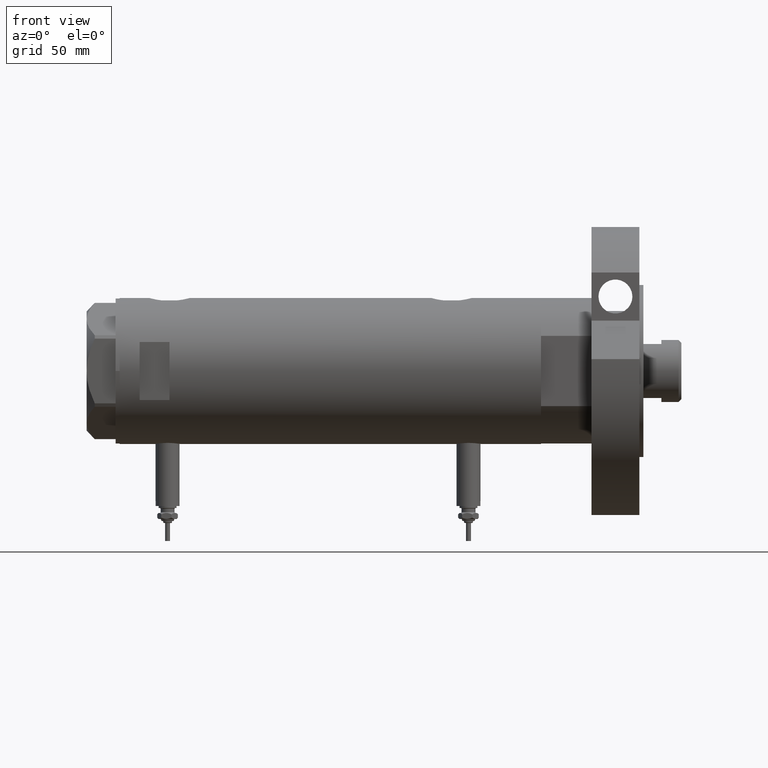
[diagram: clean part render]
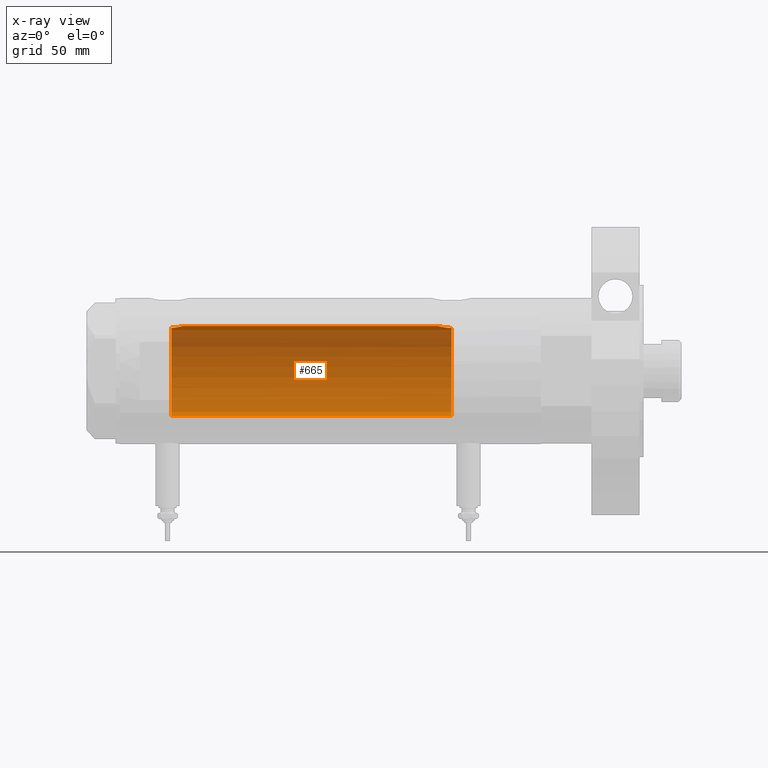
[diagram: x-ray — body ghosted, one internal face saturated and labeled with its STEP entity id]
A machine part, front view, then the same camera in x-ray: the body is ghosted and one INTERNAL B-rep face — a face not visible from any outside direction — is saturated and labeled: STEP entity #665.
In plain terms, the highlighted cylindrical surface (partial cylindrical patch) has radius 22.5 mm, axis along (1, 0, -0).
Its self-contained STEP definition (entity closure, byte-faithful):
#219 = CARTESIAN_POINT ( 'NONE',  ( 21.98170506496023791, 4.804030677015551198, -56.09847163284563010 ) ) ;
#248 = CARTESIAN_POINT ( 'NONE',  ( -22.50000000000000355, 0.000000000000000000, 105.3999999999999915 ) ) ;
#283 = CARTESIAN_POINT ( 'NONE',  ( 22.41810768969942202, 1.927264596308561284, 74.10552498238021712 ) ) ;
#319 = CARTESIAN_POINT ( 'NONE',  ( 21.58771824211646972, 6.342145538420571604, 78.63591924784432763 ) ) ;
#384 = CARTESIAN_POINT ( 'NONE',  ( 21.88602906110444124, 5.222191658358661392, -56.59110908501991588 ) ) ;
#435 = CARTESIAN_POINT ( 'NONE',  ( 22.50000000000000355, 0.000000000000000000, 73.81999999999999318 ) ) ;
#475 = DIRECTION ( 'NONE',  ( -1.000000000000000000, 0.000000000000000000, 0.000000000000000000 ) ) ;
#563 = CARTESIAN_POINT ( 'NONE',  ( 21.51969523957627928, 6.569111213712933939, -60.16380209493690501 ) ) ;
#665 = ADVANCED_FACE ( 'NONE', ( #2867 ), #4619, .F. ) ;
#822 = CARTESIAN_POINT ( 'NONE',  ( 21.85834467356397681, 5.340944334976056140, 76.53736885285051983 ) ) ;
#867 = CARTESIAN_POINT ( 'NONE',  ( 22.20005338163446851, 3.677069589895782808, 74.92964083487821370 ) ) ;
#925 = B_SPLINE_CURVE_WITH_KNOTS ( 'NONE', 3,
 ( #1390, #1546, #1465, #3791, #3228, #2651, #4974, #3262, #3863, #219, #6208, #384, #2572, #4899, #3481, #1726, #5088, #3446, #3341, #563, #5779, #6281 ),
 .UNSPECIFIED., .F., .F.,
 ( 4, 2, 2, 2, 2, 2, 2, 2, 2, 2, 4 ),
 ( 0.02068572879290662969, 0.02197833177876013649, 0.02327093476461364330, 0.02456353775046714663, 0.02585614073632065343, 0.02650244222924739990, 0.02714874372217414636, 0.02844134670802765663, 0.02973394969388116690, 0.03038025118680792031, 0.03102655267973467718 ),
 .UNSPECIFIED. ) ;
#1033 = EDGE_CURVE ( 'NONE', #4293, #7167, #5593, .T. ) ;
#1066 = DIRECTION ( 'NONE',  ( -0.000000000000000000, -0.000000000000000000, -1.000000000000000000 ) ) ;
#1327 = CARTESIAN_POINT ( 'NONE',  ( 21.70300828301578377, 5.938634204148081963, 77.54008341356919232 ) ) ;
#1390 = CARTESIAN_POINT ( 'NONE',  ( 22.50000000000000355, 8.058593785575293352E-16, -54.01999999999999602 ) ) ;
#1409 = CARTESIAN_POINT ( 'NONE',  ( 22.50000000000000355, 0.000000000000000000, 73.81999999999999318 ) ) ;
#1455 = ORIENTED_EDGE ( 'NONE', *, *, #5573, .T. ) ;
#1465 = CARTESIAN_POINT ( 'NONE',  ( 22.48752745446833146, 0.8626660575027236266, -54.06226479722904088 ) ) ;
#1546 = CARTESIAN_POINT ( 'NONE',  ( 22.50000000000000711, 0.4308769323960447983, -54.01999999999999602 ) ) ;
#1726 = CARTESIAN_POINT ( 'NONE',  ( 21.61738790272777422, 6.242481197317901298, -58.47475324290417831 ) ) ;
#1953 = CARTESIAN_POINT ( 'NONE',  ( 21.53958216864942088, 6.503568251352487728, 79.40000000000000568 ) ) ;
#1986 = CARTESIAN_POINT ( 'NONE',  ( 22.48961798642637788, 0.7839168256130882861, 73.85525408827135152 ) ) ;
#2337 = CARTESIAN_POINT ( 'NONE',  ( 0.000000000000000000, 0.000000000000000000, 105.3999999999999915 ) ) ;
#2551 = CARTESIAN_POINT ( 'NONE',  ( 21.60406082673096506, 6.286405977953739566, 78.44666670735803393 ) ) ;
#2572 = CARTESIAN_POINT ( 'NONE',  ( 21.85514244747244561, 5.349553529053611811, -56.76278474480277936 ) ) ;
#2575 = ORIENTED_EDGE ( 'NONE', *, *, #3738, .T. ) ;
#2597 = DIRECTION ( 'NONE',  ( -0.000000000000000000, -0.000000000000000000, -1.000000000000000000 ) ) ;
#2651 = CARTESIAN_POINT ( 'NONE',  ( 22.31307373663815952, 2.921646833104069696, -54.68858613169775396 ) ) ;
#2867 = FACE_OUTER_BOUND ( 'NONE', #4588, .T. ) ;
#3065 = EDGE_CURVE ( 'NONE', #4292, #4558, #7524, .T. ) ;
#3090 = CARTESIAN_POINT ( 'NONE',  ( 22.40112435233285026, 2.115025885874704414, 74.16613662186026090 ) ) ;
#3125 = CARTESIAN_POINT ( 'NONE',  ( 21.53958216864942088, 6.503568251352487728, 79.40000000000000568 ) ) ;
#3167 = CARTESIAN_POINT ( 'NONE',  ( 22.50000000000000000, 0.3947970979781458833, 73.81999999999997897 ) ) ;
#3228 = CARTESIAN_POINT ( 'NONE',  ( 22.40265168709897736, 2.128491761919765857, -54.35897789146818582 ) ) ;
#3262 = CARTESIAN_POINT ( 'NONE',  ( 22.14109776314136369, 4.018961829707391686, -55.37237162697962845 ) ) ;
#3341 = CARTESIAN_POINT ( 'NONE',  ( 21.53277870401796790, 6.526097350343573744, -59.73193080670432664 ) ) ;
#3446 = CARTESIAN_POINT ( 'NONE',  ( 21.54248662244912893, 6.494090541481658541, -59.51861175082141386 ) ) ;
#3481 = CARTESIAN_POINT ( 'NONE',  ( 21.71097692913351551, 5.908765693315407574, -57.67224774632264683 ) ) ;
#3511 = DIRECTION ( 'NONE',  ( -1.000000000000000000, 0.000000000000000000, 0.000000000000000000 ) ) ;
#3516 = DIRECTION ( 'NONE',  ( 1.000000000000000000, 0.000000000000000000, 0.000000000000000000 ) ) ;
#3539 = VECTOR ( 'NONE', #5217, 1000.000000000000000 ) ;
#3563 = EDGE_CURVE ( 'NONE', #4558, #7167, #925, .T. ) ;
#3588 = ORIENTED_EDGE ( 'NONE', *, *, #4219, .F. ) ;
#3654 = CARTESIAN_POINT ( 'NONE',  ( 21.51635656889892800, 6.580000000000002736, -60.60000000000000853 ) ) ;
#3659 = B_SPLINE_CURVE_WITH_KNOTS ( 'NONE', 3,
 ( #3125, #4382, #5492, #319, #2551, #6110, #1327, #6688, #822, #3770, #6070, #7223, #867, #5534, #4834, #3090, #283, #4876, #4955, #1986, #3167, #1409 ),
 .UNSPECIFIED., .F., .F.,
 ( 4, 2, 2, 2, 2, 2, 2, 2, 2, 2, 4 ),
 ( 0.03202894702871424137, 0.03261250414633483363, 0.03319606126395543283, 0.03436317549919665898, 0.03553028973443789207, 0.03669740396967911822, 0.03786451820492034437, 0.03903163244016157052, 0.03961518955778218359, 0.04019874667540278973, 0.04136586091064399506 ),
 .UNSPECIFIED. ) ;
#3738 = EDGE_CURVE ( 'NONE', #3856, #5459, #4881, .T. ) ;
#3770 = CARTESIAN_POINT ( 'NONE',  ( 21.97198143592078878, 4.852313884858205917, 75.93898489903314442 ) ) ;
#3791 = CARTESIAN_POINT ( 'NONE',  ( 22.43846943857365517, 1.717024460055897483, -54.23305400432137446 ) ) ;
#3856 = VERTEX_POINT ( 'NONE', #1953 ) ;
#3863 = CARTESIAN_POINT ( 'NONE',  ( 22.07793805162484091, 4.348669293362737776, -55.64321183416396366 ) ) ;
#3912 = AXIS2_PLACEMENT_3D ( 'NONE', #4697, #4771, #3516 ) ;
#3914 = ORIENTED_EDGE ( 'NONE', *, *, #3065, .F. ) ;
#3927 = ORIENTED_EDGE ( 'NONE', *, *, #3563, .F. ) ;
#4039 = CARTESIAN_POINT ( 'NONE',  ( 22.50000000000000355, 2.755455298081545172E-15, 105.3999999999999915 ) ) ;
#4219 = EDGE_CURVE ( 'NONE', #3856, #4292, #3659, .T. ) ;
#4273 = LINE ( 'NONE', #248, #5754 ) ;
#4292 = VERTEX_POINT ( 'NONE', #435 ) ;
#4293 = VERTEX_POINT ( 'NONE', #5177 ) ;
#4382 = CARTESIAN_POINT ( 'NONE',  ( 21.54850992350583994, 6.473999851071389422, 79.20769989068857342 ) ) ;
#4398 = ORIENTED_EDGE ( 'NONE', *, *, #1033, .T. ) ;
#4558 = VERTEX_POINT ( 'NONE', #5296 ) ;
#4588 = EDGE_LOOP ( 'NONE', ( #3914, #3588, #2575, #1455, #4398, #3927 ) ) ;
#4619 = CYLINDRICAL_SURFACE ( 'NONE', #5587, 22.50000000000000355 ) ;
#4697 = CARTESIAN_POINT ( 'NONE',  ( 0.000000000000000000, 0.000000000000000000, 79.40000000000000568 ) ) ;
#4771 = DIRECTION ( 'NONE',  ( 0.000000000000000000, 0.000000000000000000, 1.000000000000000000 ) ) ;
#4834 = CARTESIAN_POINT ( 'NONE',  ( 22.34487948028763071, 2.662928462767977678, 74.37031008565884349 ) ) ;
#4876 = CARTESIAN_POINT ( 'NONE',  ( 22.44738562510071844, 1.549445000368398828, 74.00203276325540003 ) ) ;
#4881 = CIRCLE ( 'NONE', #3912, 22.50000000000000355 ) ;
#4899 = CARTESIAN_POINT ( 'NONE',  ( 21.76592257976931677, 5.705656113855378742, -57.29484284637811697 ) ) ;
#4955 = CARTESIAN_POINT ( 'NONE',  ( 22.45973433770729599, 1.359115216171842055, 73.95894713662335107 ) ) ;
#4974 = CARTESIAN_POINT ( 'NONE',  ( 22.25860915731085754, 3.306748059303232345, -54.89512753277104196 ) ) ;
#5088 = CARTESIAN_POINT ( 'NONE',  ( 21.58039466125149985, 6.367443256290044928, -58.88625661091906238 ) ) ;
#5177 = CARTESIAN_POINT ( 'NONE',  ( -22.50000000000000355, 0.000000000000000000, -60.60000000000001563 ) ) ;
#5181 = DIRECTION ( 'NONE',  ( 0.000000000000000000, 0.000000000000000000, -1.000000000000000000 ) ) ;
#5217 = DIRECTION ( 'NONE',  ( -0.000000000000000000, -0.000000000000000000, -1.000000000000000000 ) ) ;
#5296 = CARTESIAN_POINT ( 'NONE',  ( 22.50000000000000355, 8.058593785575293352E-16, -54.01999999999999602 ) ) ;
#5459 = VERTEX_POINT ( 'NONE', #5960 ) ;
#5492 = CARTESIAN_POINT ( 'NONE',  ( 21.55996057785741726, 6.435875139617810881, 79.01641692772589920 ) ) ;
#5534 = CARTESIAN_POINT ( 'NONE',  ( 22.30007684883240415, 3.011608117356132652, 74.53690468166831806 ) ) ;
#5573 = EDGE_CURVE ( 'NONE', #5459, #4293, #4273, .T. ) ;
#5587 = AXIS2_PLACEMENT_3D ( 'NONE', #2337, #1066, #3511 ) ;
#5593 = CIRCLE ( 'NONE', #6704, 22.50000000000000355 ) ;
#5754 = VECTOR ( 'NONE', #2597, 1000.000000000000000 ) ;
#5765 = CARTESIAN_POINT ( 'NONE',  ( 0.000000000000000000, 0.000000000000000000, -60.60000000000001563 ) ) ;
#5779 = CARTESIAN_POINT ( 'NONE',  ( 21.51635656889892445, 6.580000000000000071, -60.38312317022886333 ) ) ;
#5960 = CARTESIAN_POINT ( 'NONE',  ( -22.50000000000000355, 0.000000000000000000, 79.40000000000000568 ) ) ;
#6070 = CARTESIAN_POINT ( 'NONE',  ( 22.03020271031500954, 4.583618747547686390, 75.66326305060309210 ) ) ;
#6110 = CARTESIAN_POINT ( 'NONE',  ( 21.65875036540690957, 6.096384986856007160, 77.89350157007415021 ) ) ;
#6208 = CARTESIAN_POINT ( 'NONE',  ( 21.94924653817635019, 4.949760619110008975, -56.25922104935666113 ) ) ;
#6281 = CARTESIAN_POINT ( 'NONE',  ( 21.51635656889892800, 6.580000000000002736, -60.60000000000000853 ) ) ;
#6688 = CARTESIAN_POINT ( 'NONE',  ( 21.80257506594835704, 5.561983929949494865, 76.86293428743493905 ) ) ;
#6704 = AXIS2_PLACEMENT_3D ( 'NONE', #5765, #5181, #475 ) ;
#7167 = VERTEX_POINT ( 'NONE', #3654 ) ;
#7223 = CARTESIAN_POINT ( 'NONE',  ( 22.14421896774457466, 3.996618394220603498, 75.15850411031065903 ) ) ;
#7524 = LINE ( 'NONE', #4039, #3539 ) ;